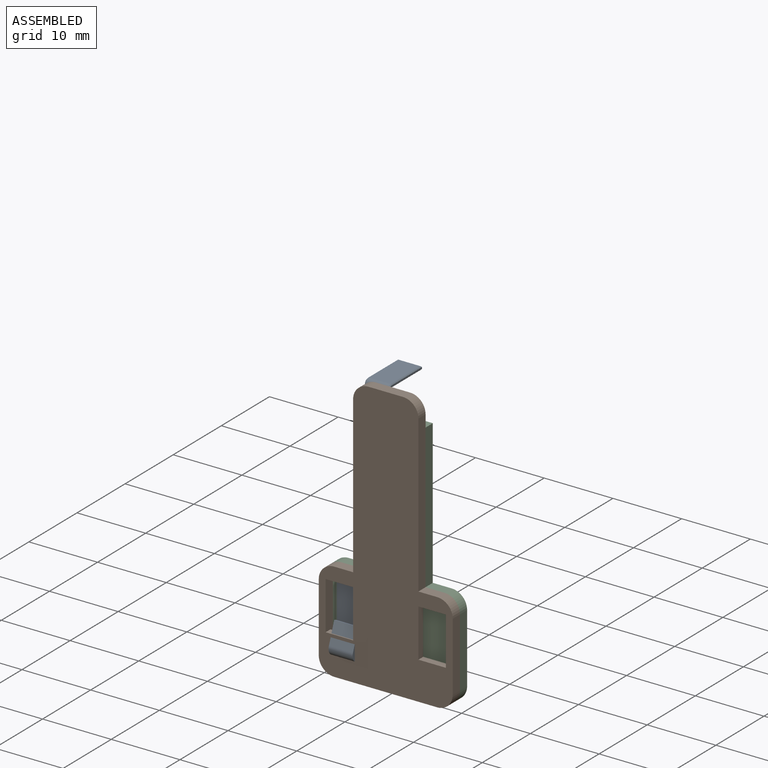
[diagram: assembled view]
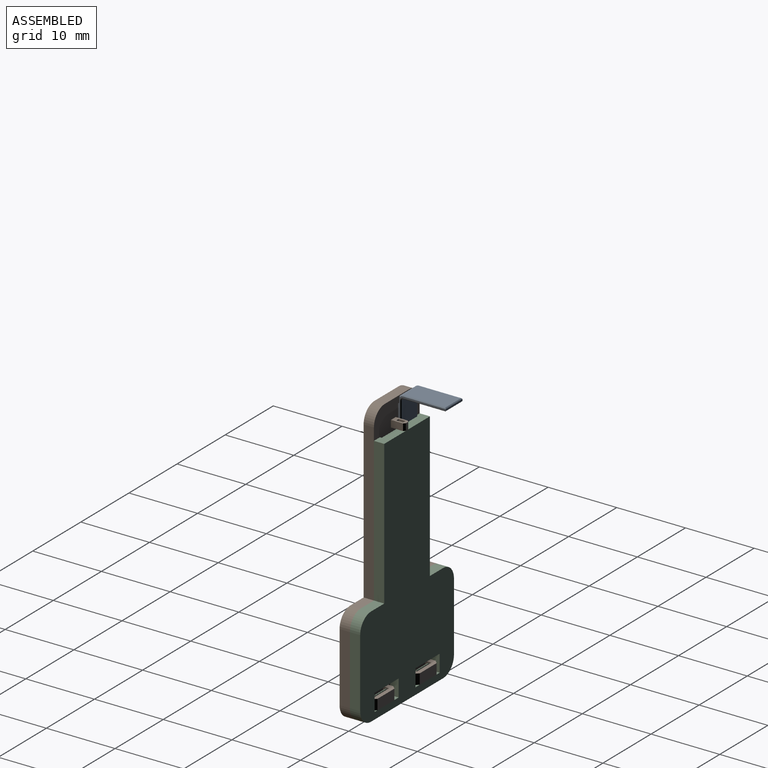
[diagram: assembled view, second angle]
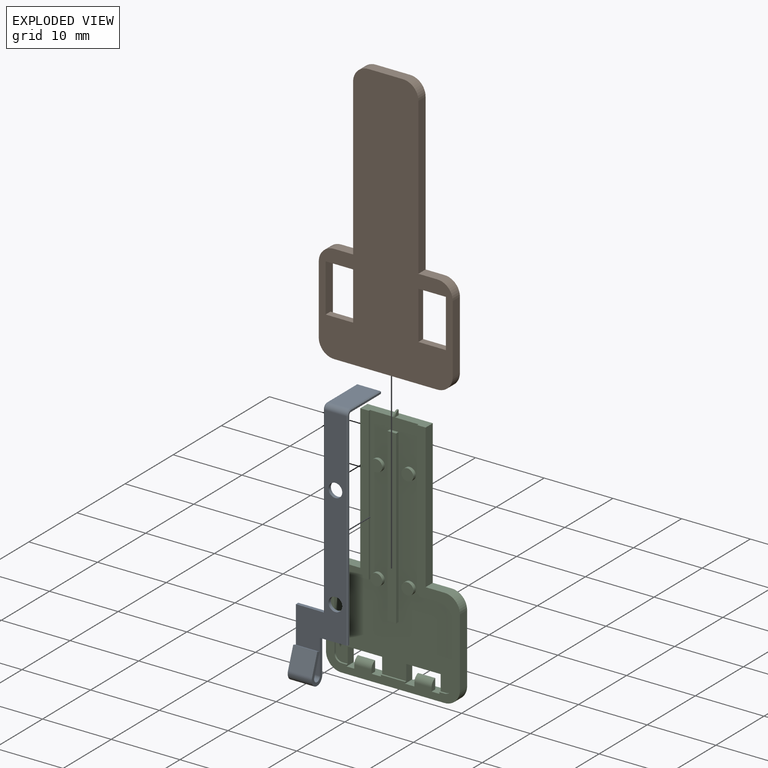
[diagram: exploded view]
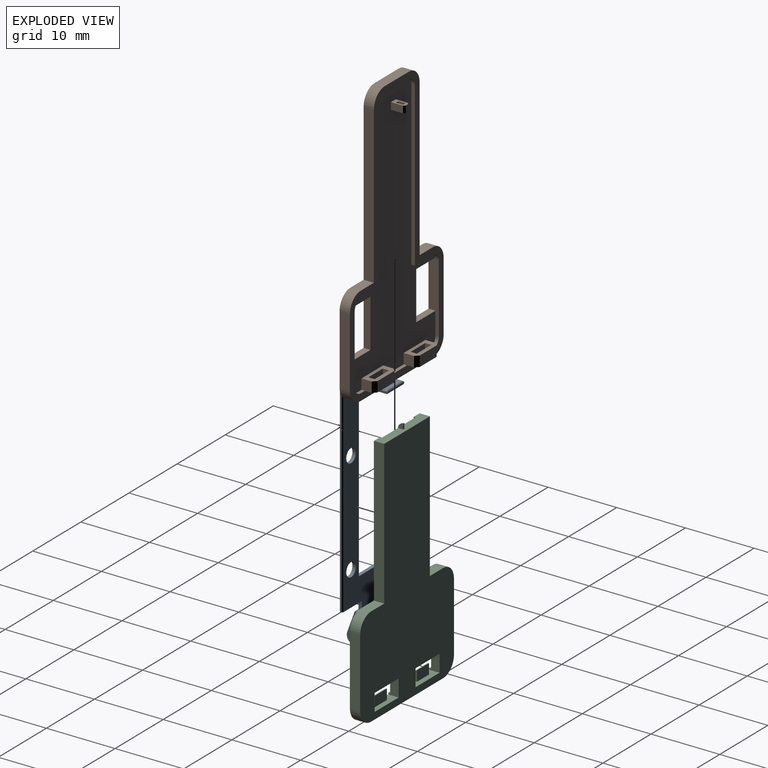
[diagram: exploded view, second angle]
ASSEMBLY  parts=3 mates=2
PART A: 42 faces, bbox 8.7x37x7.5 mm
  f0: plane 35.16x7.38mm, normal (1,0,0), area 123.7mm2, adj f10,f13,f14,f15,f16,f17,f18,f21
  f1: plane 35.16x7.38mm, normal (-1,0,0), area 123.7mm2, adj f9,f13,f14,f15,f16,f17,f18,f22
  f2: plane 26.66x0.25mm, normal (0,0,1), area 6.7mm2, adj f16,f19,f38,f41
  f3: plane 30.16x0.25mm, normal (0,0,-1), area 7.5mm2, adj f15,f20,f32,f35
  f4: plane 3.5x0.47mm, normal (-0.34,0.94,0), area 1.7mm2, adj f5,f6,f7,f8
  f5: plane 3.5x3.01mm, normal (0.94,0.34,0), area 11.2mm2, adj f4,f7,f8,f9
  f6: plane 3.5x3.01mm, normal (-0.94,-0.34,0), area 11.2mm2, adj f4,f7,f8,f10
  f7: plane 3.18x1.57mm, normal (0,0,1), area 1.6mm2, adj f4,f5,f6,f11
  f8: plane 3.18x1.57mm, normal (0,0,-1), area 1.6mm2, adj f4,f5,f6,f12
  f9: cylinder r=1.1mm len=3.5mm, axis (0,0,-1), area 13.4mm2, adj f1,f5,f11,f12
  f10: cylinder r=0.6mm len=3.5mm, axis (0,0,-1), area 7.3mm2, adj f0,f6,f11,f12
  f11: plane 2.2x1.48mm, normal (0,0,1), area 1.5mm2, adj f7,f9,f10,f14
  f12: plane 2.2x1.48mm, normal (0,0,-1), area 1.5mm2, adj f8,f9,f10,f13
  f13: plane 5x0.5mm, normal (0,0,-1), area 2.5mm2, adj f0,f1,f12,f15
  f14: plane 8.5x0.5mm, normal (0,0,1), area 4.3mm2, adj f0,f1,f11,f16
  f15: plane 4x0.5mm, normal (0,-1,0), area 2mm2, adj f0,f1,f3,f13,f32,f35
  f16: plane 4.13x0.5mm, normal (0,1,0), area 2mm2, adj f0,f1,f2,f14,f38,f41
  f17: cylinder r=1mm len=2mm, axis (1,0,0), area 3.1mm2, adj f0,f1
  f18: cylinder r=1mm len=2mm, axis (1,0,0), area 3.1mm2, adj f0,f1
  f19: plane 0.63x0.63mm, normal (0,0,1), area 0.2mm2, adj f2,f24,f37,f40
  f20: plane 0.63x0.63mm, normal (0,0,-1), area 0.2mm2, adj f3,f23,f31,f34
  f21: cylinder r=0.75mm len=3.25mm, axis (0,0,-1), area 3.8mm2, adj f0,f25,f31,f40
  f22: cylinder r=0.25mm len=3.25mm, axis (0,0,-1), area 1.3mm2, adj f1,f26,f34,f37
  f23: plane 6.25x0.25mm, normal (0,0,-1), area 1.6mm2, adj f20,f27,f30,f33
  f24: plane 6.25x0.25mm, normal (0,0,1), area 1.6mm2, adj f19,f27,f36,f39
  f25: plane 6.12x3.25mm, normal (0,1,0), area 19.9mm2, adj f21,f29,f30,f39
  f26: plane 6.12x3.25mm, normal (0,-1,0), area 19.9mm2, adj f22,f28,f33,f36
  f27: plane 3.5x0.25mm, normal (-1,0,0), area 0.9mm2, adj f23,f24,f28,f29
  f28: plane 3.5x0.13mm, normal (-0.71,-0.71,0), area 0.6mm2, adj f26,f27,f33,f36
  f29: plane 3.5x0.13mm, normal (-0.71,0.71,0), area 0.6mm2, adj f25,f27,f30,f39
  f30: plane 6.25x0.13mm, normal (0,0.71,-0.71), area 1.1mm2, adj f23,f25,f29,f31
  f31: cone r=0.63mm half-angle=45deg, axis (0,0,1), area 0.2mm2, adj f20,f21,f30,f32
  f32: plane 30.16x0.13mm, normal (0.71,0,-0.71), area 5.3mm2, adj f0,f3,f15,f31
  f33: plane 6.25x0.13mm, normal (0,-0.71,-0.71), area 1.1mm2, adj f23,f26,f28,f34
  f34: cone r=0.25mm half-angle=45deg, axis (0,0,-1), area 0.1mm2, adj f20,f22,f33,f35
  f35: plane 30.16x0.13mm, normal (-0.71,0,-0.71), area 5.3mm2, adj f1,f3,f15,f34
  f36: plane 6.25x0.13mm, normal (0,-0.71,0.71), area 1.1mm2, adj f24,f26,f28,f37
  f37: cone r=0.25mm half-angle=45deg, axis (0,0,1), area 0.1mm2, adj f19,f22,f36,f38
  f38: plane 26.66x0.13mm, normal (-0.71,0,0.71), area 4.7mm2, adj f1,f2,f16,f37
  f39: plane 6.25x0.13mm, normal (0,0.71,0.71), area 1.1mm2, adj f24,f25,f29,f40
  f40: cone r=0.63mm half-angle=45deg, axis (0,0,-1), area 0.2mm2, adj f19,f21,f39,f41
  f41: plane 26.66x0.13mm, normal (0.71,0,0.71), area 4.7mm2, adj f0,f2,f16,f40
PART B: 72 faces, bbox 19.5x39.5x3 mm
  f0: plane 2x1mm, normal (0,1,0), area 1.4mm2, adj f7,f63,f64,f65,f66,f67,f68,f69
  f1: plane 2x1mm, normal (0,-1,0), area 1.4mm2, adj f7,f63,f64,f65,f66,f67,f68,f69
  f2: plane 4.5x1.5mm, normal (0,-1,0), area 3.8mm2, adj f8,f46,f47,f48,f55,f56,f60,f61
  f3: plane 4.5x2mm, normal (0,1,0), area 6.1mm2, adj f7,f8,f46,f47,f48,f55,f56,f60
  f4: plane 4.5x2mm, normal (0,1,0), area 6.1mm2, adj f7,f8,f50,f51,f52,f53,f54,f57
  f5: plane 4.28x0.5mm, normal (0,1,0), area 2.1mm2, adj f7,f8,f47,f50
  f6: plane 0.86x0.5mm, normal (0,1,0), area 0.4mm2, adj f7,f8,f31,f46
  f7: plane 37.5x17.5mm, normal (0,0,1), area 333.7mm2, adj f0,f1,f3,f4,f5,f6,f24,f25
  f8: plane 39.5x19.5mm, normal (0,0,1), area 118.5mm2, adj f2,f3,f4,f5,f6,f9,f10,f11
  f9: cylinder r=2.25mm len=2.25mm, axis (0,0,-1), area 5.3mm2, adj f8,f10,f22,f23
  f10: plane 5x1.5mm, normal (0,1,0), area 7.5mm2, adj f8,f9,f11,f23
  f11: cylinder r=2.25mm len=2.25mm, axis (0,0,-1), area 5.3mm2, adj f8,f10,f12,f23
  f12: plane 22.75x1.5mm, normal (-1,0,0), area 34.1mm2, adj f8,f11,f13,f23
  f13: plane 2.75x1.5mm, normal (0,1,0), area 4.1mm2, adj f8,f12,f14,f23
  f14: cylinder r=2.25mm len=2.25mm, axis (0,0,-1), area 5.3mm2, adj f8,f13,f15,f23
  f15: plane 10x1.5mm, normal (-1,0,0), area 15mm2, adj f8,f14,f16,f23
  f16: cylinder r=2.25mm len=2.25mm, axis (0,0,-1), area 5.3mm2, adj f8,f15,f17,f23
  f17: plane 15x1.5mm, normal (0,-1,0), area 22.5mm2, adj f8,f16,f18,f23
  f18: cylinder r=2.25mm len=2.25mm, axis (0,0,-1), area 5.3mm2, adj f8,f17,f19,f23
  f19: plane 10x1.5mm, normal (1,0,0), area 15mm2, adj f8,f18,f20,f23
  f20: cylinder r=2.25mm len=2.25mm, axis (0,0,-1), area 5.3mm2, adj f8,f19,f21,f23
  f21: plane 2.75x1.5mm, normal (0,1,0), area 4.1mm2, adj f8,f20,f22,f23
  f22: plane 22.75x1.5mm, normal (1,0,0), area 34.1mm2, adj f8,f9,f21,f23
  f23: plane 39.5x19.5mm, normal (0,0,-1), area 457.7mm2, adj f9,f10,f11,f12,f13,f14,f15,f16
  f24: cylinder r=1.25mm len=1.25mm, axis (0,0,-1), area 1mm2, adj f7,f8,f25,f37
  f25: plane 5x0.5mm, normal (0,-1,0), area 2.5mm2, adj f7,f8,f24,f26
  f26: cylinder r=1.25mm len=1.25mm, axis (0,0,-1), area 1mm2, adj f7,f8,f25,f27
  f27: plane 23.75x0.5mm, normal (1,0,0), area 11.9mm2, adj f7,f8,f26,f28
  f28: plane 3.75x0.5mm, normal (0,-1,0), area 1.9mm2, adj f7,f8,f27,f29
  f29: cylinder r=1.25mm len=1.25mm, axis (0,0,-1), area 1mm2, adj f7,f8,f28,f30,f45
  f30: plane 10.28x1.5mm, normal (1,0,0), area 12mm2, adj f7,f8,f23,f29,f31,f42,f44,f45
  f31: cylinder r=1.25mm len=1.25mm, axis (0,0,-1), area 1mm2, adj f6,f7,f8,f30
  f32: plane 0.86x0.5mm, normal (0,1,0), area 0.4mm2, adj f7,f8,f33,f51
  f33: cylinder r=1.25mm len=1.25mm, axis (0,0,-1), area 1mm2, adj f7,f8,f32,f34
  f34: plane 10.28x1.5mm, normal (-1,0,0), area 12mm2, adj f7,f8,f23,f33,f35,f38,f39,f41
  f35: cylinder r=1.25mm len=1.25mm, axis (0,0,-1), area 1mm2, adj f7,f8,f34,f36,f41
  f36: plane 3.75x0.5mm, normal (0,-1,0), area 1.9mm2, adj f7,f8,f35,f37
  f37: plane 23.75x0.5mm, normal (-1,0,0), area 11.9mm2, adj f7,f8,f24,f36
  f38: plane 4x1mm, normal (0,-1,0), area 4mm2, adj f7,f23,f34,f40,f41
  f39: plane 4x1mm, normal (0,1,0), area 4mm2, adj f7,f23,f34,f40
  f40: plane 7x1mm, normal (1,0,0), area 7mm2, adj f7,f23,f38,f39
  f41: plane 0.28x0.03mm, normal (0,0,-1), area 0mm2, adj f34,f35,f38
  f42: plane 4x1mm, normal (0,-1,0), area 4mm2, adj f7,f23,f30,f43,f45
  f43: plane 7x1mm, normal (-1,0,0), area 7mm2, adj f7,f23,f42,f44
  f44: plane 4x1mm, normal (0,1,0), area 4mm2, adj f7,f23,f30,f43
  f45: plane 0.28x0.03mm, normal (0,0,-1), area 0mm2, adj f29,f30,f42
  f46: plane 1.5x1.5mm, normal (-1,0,0), area 2.2mm2, adj f2,f3,f6,f7,f56
  f47: plane 1.5x1.5mm, normal (1,0,0), area 2.2mm2, adj f2,f3,f5,f7,f55
  f48: plane 3.5x1.5mm, normal (0,0,1), area 5.2mm2, adj f2,f3,f55,f56
  f49: plane 4.5x1.5mm, normal (0,-1,0), area 3.8mm2, adj f8,f50,f51,f52,f53,f54,f57,f58
  f50: plane 1.5x1.5mm, normal (-1,0,0), area 2.2mm2, adj f4,f5,f7,f49,f54
  f51: plane 1.5x1.5mm, normal (1,0,0), area 2.2mm2, adj f4,f7,f32,f49,f53
  f52: plane 3.5x1.5mm, normal (0,0,1), area 5.2mm2, adj f4,f49,f53,f54
  f53: plane 1.5x0.5mm, normal (0.71,0,0.71), area 1.1mm2, adj f4,f49,f51,f52
  f54: plane 1.5x0.5mm, normal (-0.71,0,0.71), area 1.1mm2, adj f4,f49,f50,f52
  f55: plane 1.5x0.5mm, normal (0.71,0,0.71), area 1.1mm2, adj f2,f3,f47,f48
  f56: plane 1.5x0.5mm, normal (-0.71,0,0.71), area 1.1mm2, adj f2,f3,f46,f48
  f57: plane 1.5x0.9mm, normal (-1,0,0), area 1.4mm2, adj f4,f8,f49,f58
  f58: plane 3x1.5mm, normal (0,0,-1), area 4.5mm2, adj f4,f49,f57,f59
  f59: plane 1.5x0.9mm, normal (1,0,0), area 1.4mm2, adj f4,f8,f49,f58
  f60: plane 3x1.5mm, normal (0,0,-1), area 4.5mm2, adj f2,f3,f61,f62
  f61: plane 1.5x0.9mm, normal (1,0,0), area 1.4mm2, adj f2,f3,f8,f60
  f62: plane 1.5x0.9mm, normal (-1,0,0), area 1.4mm2, adj f2,f3,f8,f60
  f63: plane 1.75x1mm, normal (-1,0,0), area 1.8mm2, adj f0,f1,f7,f71
  f64: plane 1.75x1mm, normal (1,0,0), area 1.8mm2, adj f0,f1,f7,f70
  f65: plane 1x0.5mm, normal (0,0,1), area 0.5mm2, adj f0,f1,f70,f71
  f66: plane 1x0.5mm, normal (0,0,-1), area 0.5mm2, adj f0,f1,f67,f69
  f67: plane 1x1mm, normal (1,0,0), area 1mm2, adj f0,f1,f66,f68
  f68: plane 1x0.5mm, normal (0,0,1), area 0.5mm2, adj f0,f1,f67,f69
  f69: plane 1x1mm, normal (-1,0,0), area 1mm2, adj f0,f1,f66,f68
  f70: plane 1x0.25mm, normal (0.71,0,0.71), area 0.4mm2, adj f0,f1,f64,f65
  f71: plane 1x0.25mm, normal (-0.71,0,0.71), area 0.4mm2, adj f0,f1,f63,f65
PART C: 61 faces, bbox 19.5x1.7x36.3 mm
  f0: plane 5x1.5mm, normal (0,0,1), area 5.6mm2, adj f2,f5,f49,f51,f52,f53,f54
  f1: plane 34.26x17.03mm, normal (0,-1,0), area 296.7mm2, adj f3,f4,f6,f7,f8,f9,f10,f11
  f2: plane 35.5x19.5mm, normal (0,-1,0), area 118mm2, adj f0,f3,f4,f6,f7,f8,f9,f10
  f3: plane 3.51x0.26mm, normal (0,0,1), area 0.9mm2, adj f1,f2,f47,f49
  f4: plane 0.74x0.26mm, normal (0,0,1), area 0.2mm2, adj f1,f2,f14,f45
  f5: plane 35.5x19.5mm, normal (0,1,0), area 452.9mm2, adj f0,f17,f18,f19,f20,f21,f22,f23
  f6: plane 10x0.26mm, normal (-1,0,0), area 2.6mm2, adj f1,f2,f7,f14
  f7: cylinder r=1.01mm len=1.01mm, axis (0,1,0), area 0.4mm2, adj f1,f2,f6,f8
  f8: plane 3.99x0.26mm, normal (0,0,-1), area 1.1mm2, adj f1,f2,f7,f9
  f9: plane 22.24x0.26mm, normal (-1,0,0), area 5.9mm2, adj f1,f2,f8,f41
  f10: plane 22.24x0.26mm, normal (1,0,0), area 5.9mm2, adj f1,f2,f11,f41
  f11: plane 3.99x0.26mm, normal (0,0,-1), area 1.1mm2, adj f1,f2,f10,f12
  f12: cylinder r=1.01mm len=1.01mm, axis (0,1,0), area 0.4mm2, adj f1,f2,f11,f13
  f13: plane 10x0.26mm, normal (1,0,0), area 2.6mm2, adj f1,f2,f12,f15
  f14: cylinder r=1.01mm len=1.01mm, axis (0,1,0), area 0.4mm2, adj f1,f2,f4,f6
  f15: cylinder r=1.01mm len=1.01mm, axis (0,1,0), area 0.4mm2, adj f1,f2,f13,f16
  f16: plane 0.74x0.26mm, normal (0,0,1), area 0.2mm2, adj f1,f2,f15,f51
  f17: cylinder r=2.25mm len=2.25mm, axis (0,1,0), area 5.3mm2, adj f2,f5,f18,f27
  f18: plane 10x1.5mm, normal (1,0,0), area 15mm2, adj f2,f5,f17,f19
  f19: cylinder r=2.25mm len=2.25mm, axis (0,1,0), area 5.3mm2, adj f2,f5,f18,f20
  f20: plane 2.75x1.5mm, normal (0,0,1), area 4.1mm2, adj f2,f5,f19,f21
  f21: plane 21x1.5mm, normal (1,0,0), area 31.5mm2, adj f2,f5,f20,f41
  f22: plane 21x1.5mm, normal (-1,0,0), area 31.5mm2, adj f2,f5,f23,f41
  f23: plane 2.75x1.5mm, normal (0,0,1), area 4.1mm2, adj f2,f5,f22,f24
  f24: cylinder r=2.25mm len=2.25mm, axis (0,1,0), area 5.3mm2, adj f2,f5,f23,f25
  f25: plane 10x1.5mm, normal (-1,0,0), area 15mm2, adj f2,f5,f24,f26
  f26: cylinder r=2.25mm len=2.25mm, axis (0,1,0), area 5.3mm2, adj f2,f5,f25,f27
  f27: plane 15x1.5mm, normal (0,0,-1), area 22.5mm2, adj f2,f5,f17,f26
  f28: cylinder r=0.88mm len=1.75mm, axis (0,1,0), area 2.7mm2, adj f1,f29
  f29: plane 1.75x1.75mm, normal (0,-1,0), area 2.4mm2, adj f28
  f30: cylinder r=0.88mm len=1.75mm, axis (0,1,0), area 2.7mm2, adj f1,f31
  f31: plane 1.75x1.75mm, normal (0,-1,0), area 2.4mm2, adj f30
  f32: cylinder r=0.88mm len=1.75mm, axis (0,1,0), area 2.7mm2, adj f1,f33
  f33: plane 1.75x1.75mm, normal (0,-1,0), area 2.4mm2, adj f32
  f34: cylinder r=0.88mm len=1.75mm, axis (0,1,0), area 2.7mm2, adj f1,f35
  f35: plane 1.75x1.75mm, normal (0,-1,0), area 2.4mm2, adj f34
  f36: plane 25x0.5mm, normal (1,0,0), area 12.5mm2, adj f1,f37,f39,f40
  f37: plane 1.25x0.5mm, normal (0,0,1), area 0.6mm2, adj f1,f36,f38,f40
  f38: plane 25x0.5mm, normal (-1,0,0), area 12.5mm2, adj f1,f37,f39,f40
  f39: plane 1.25x0.5mm, normal (0,0,-1), area 0.6mm2, adj f1,f36,f38,f40
  f40: plane 25x1.25mm, normal (0,-1,0), area 31.2mm2, adj f36,f37,f38,f39
  f41: plane 9.5x1.5mm, normal (0,0,1), area 12.2mm2, adj f1,f2,f5,f9,f10,f21,f22,f42
  f42: plane 0.75x0.25mm, normal (0,1,0), area 0.2mm2, adj f41,f43,f44,f58
  f43: plane 0.75x0.75mm, normal (-1,0,0), area 0.4mm2, adj f41,f42,f58
  f44: plane 0.75x0.75mm, normal (1,0,0), area 0.4mm2, adj f41,f42,f58
  f45: plane 2.5x1.5mm, normal (-1,0,0), area 3.2mm2, adj f1,f2,f4,f5,f46,f48
  f46: plane 5x1.24mm, normal (0,0,-1), area 6.2mm2, adj f1,f5,f45,f47
  f47: plane 2.5x1.5mm, normal (1,0,0), area 3.2mm2, adj f1,f2,f3,f5,f46,f48
  f48: plane 5x1.5mm, normal (0,0,1), area 5.6mm2, adj f2,f5,f45,f47,f55,f56,f57
  f49: plane 2.5x1.5mm, normal (-1,0,0), area 3.2mm2, adj f0,f1,f2,f3,f5,f50
  f50: plane 5x1.24mm, normal (0,0,-1), area 6.2mm2, adj f1,f5,f49,f51
  f51: plane 2.5x1.5mm, normal (1,0,0), area 3.2mm2, adj f0,f1,f2,f5,f16,f50
  f52: plane 1.5x0.75mm, normal (-1,0,0), area 0.9mm2, adj f0,f2,f54,f60
  f53: plane 1.5x0.75mm, normal (1,0,0), area 0.9mm2, adj f0,f2,f54,f60
  f54: plane 2.5x1.5mm, normal (0,1,0), area 3.7mm2, adj f0,f52,f53,f60
  f55: plane 1.5x0.75mm, normal (1,0,0), area 0.9mm2, adj f2,f48,f57,f59
  f56: plane 1.5x0.75mm, normal (-1,0,0), area 0.9mm2, adj f2,f48,f57,f59
  f57: plane 2.5x1.5mm, normal (0,1,0), area 3.7mm2, adj f48,f55,f56,f59
  f58: cylinder r=0.75mm len=0.75mm, axis (1,0,0), area 0.3mm2, adj f1,f42,f43,f44
  f59: cylinder r=1mm len=2.5mm, axis (1,0,0), area 3.3mm2, adj f2,f55,f56,f57
  f60: cylinder r=1mm len=2.5mm, axis (-1,0,0), area 3.3mm2, adj f2,f52,f53,f54
PLACE A rot(axis=(0.58,-0.58,-0.58),120deg) t=(-6.26,-9.74,3.94)mm
PLACE B rot(axis=(0,-0.71,-0.71),180deg) t=(0,-1.5,-7.8)mm
PLACE C at identity
MATE planar B.f17 <-> C.f27  axis (0,0,-1) through (0,-0.75,-19.75)mm
MATE cylindrical A.f17 <-> C.f30  axis (0,-1,0) through (-2.26,-0.24,8.94)mm
